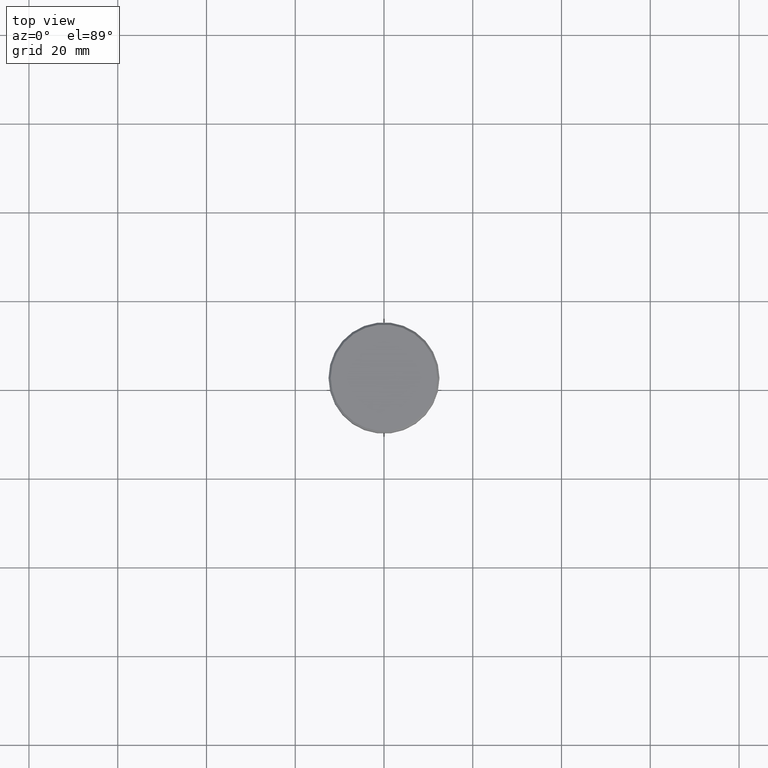
[diagram: clean part render]
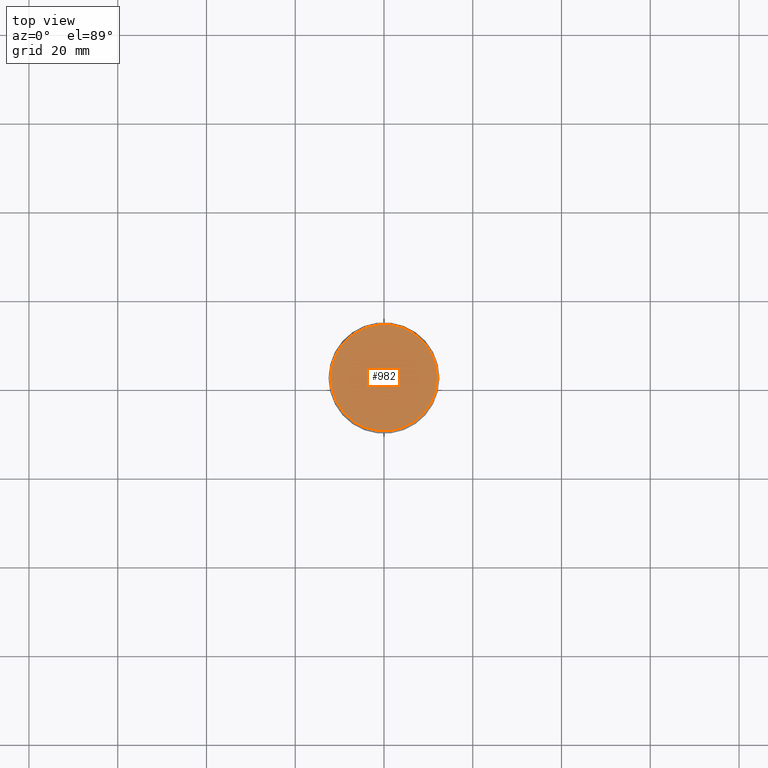
[diagram: same view with one face highlighted and labeled with its STEP entity id]
A machine part, top view. The second image highlights one B-rep face of the part: STEP entity #982.
In plain terms, the highlighted planar face has unit normal (0, -0, 1).
Its self-contained STEP definition (entity closure, byte-faithful):
#21 = DIRECTION ( 'NONE',  ( 0.000000000000000000, -0.000000000000000000, 1.000000000000000000 ) ) ;
#103 = VERTEX_POINT ( 'NONE', #1118 ) ;
#174 = DIRECTION ( 'NONE',  ( 1.000000000000000000, 0.000000000000000000, 0.000000000000000000 ) ) ;
#328 = DIRECTION ( 'NONE',  ( -0.000000000000000000, -0.000000000000000000, 1.000000000000000000 ) ) ;
#344 = AXIS2_PLACEMENT_3D ( 'NONE', #829, #21, #396 ) ;
#367 = CARTESIAN_POINT ( 'NONE',  ( 0.000000000000000000, 0.000000000000000000, 0.000000000000000000 ) ) ;
#396 = DIRECTION ( 'NONE',  ( 1.000000000000000000, 0.000000000000000000, 0.000000000000000000 ) ) ;
#446 = CIRCLE ( 'NONE', #661, 11.99999999999999645 ) ;
#480 = PLANE ( 'NONE',  #344 ) ;
#567 = FACE_OUTER_BOUND ( 'NONE', #582, .T. ) ;
#582 = EDGE_LOOP ( 'NONE', ( #680, #657 ) ) ;
#641 = AXIS2_PLACEMENT_3D ( 'NONE', #367, #981, #174 ) ;
#657 = ORIENTED_EDGE ( 'NONE', *, *, #1143, .T. ) ;
#661 = AXIS2_PLACEMENT_3D ( 'NONE', #675, #328, #681 ) ;
#675 = CARTESIAN_POINT ( 'NONE',  ( 0.000000000000000000, 0.000000000000000000, 0.000000000000000000 ) ) ;
#680 = ORIENTED_EDGE ( 'NONE', *, *, #781, .T. ) ;
#681 = DIRECTION ( 'NONE',  ( 1.000000000000000000, 0.000000000000000000, 0.000000000000000000 ) ) ;
#781 = EDGE_CURVE ( 'NONE', #1153, #103, #1037, .T. ) ;
#829 = CARTESIAN_POINT ( 'NONE',  ( 0.000000000000000000, 0.000000000000000000, 0.000000000000000000 ) ) ;
#981 = DIRECTION ( 'NONE',  ( -0.000000000000000000, -0.000000000000000000, 1.000000000000000000 ) ) ;
#982 = ADVANCED_FACE ( 'NONE', ( #567 ), #480, .T. ) ;
#1037 = CIRCLE ( 'NONE', #641, 11.99999999999999645 ) ;
#1118 = CARTESIAN_POINT ( 'NONE',  ( 11.99999999999999645, 1.500192328955507537E-15, 0.000000000000000000 ) ) ;
#1143 = EDGE_CURVE ( 'NONE', #103, #1153, #446, .T. ) ;
#1153 = VERTEX_POINT ( 'NONE', #1154 ) ;
#1154 = CARTESIAN_POINT ( 'NONE',  ( -11.99999999999999645, 0.000000000000000000, 0.000000000000000000 ) ) ;